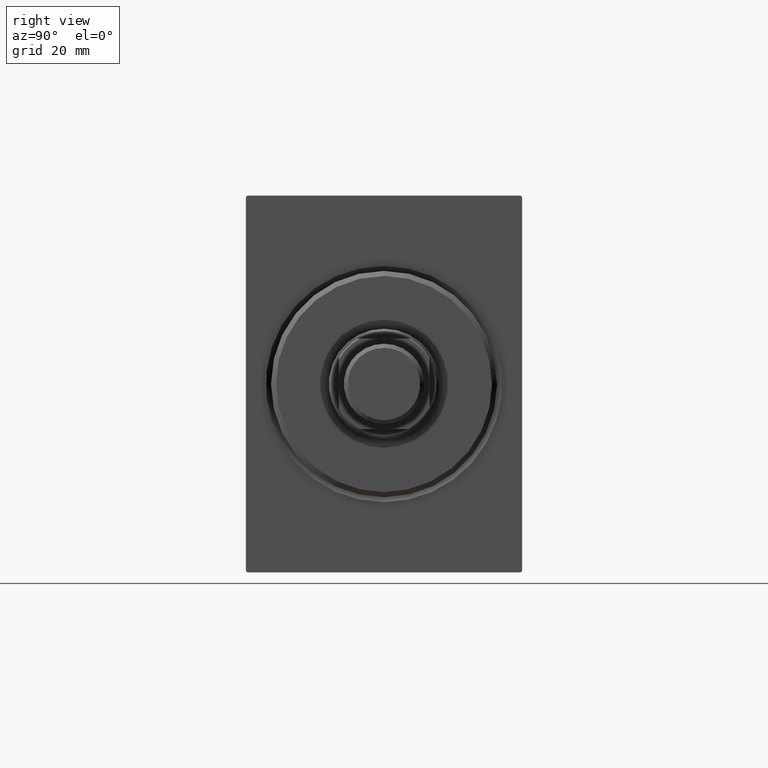
[diagram: clean part render]
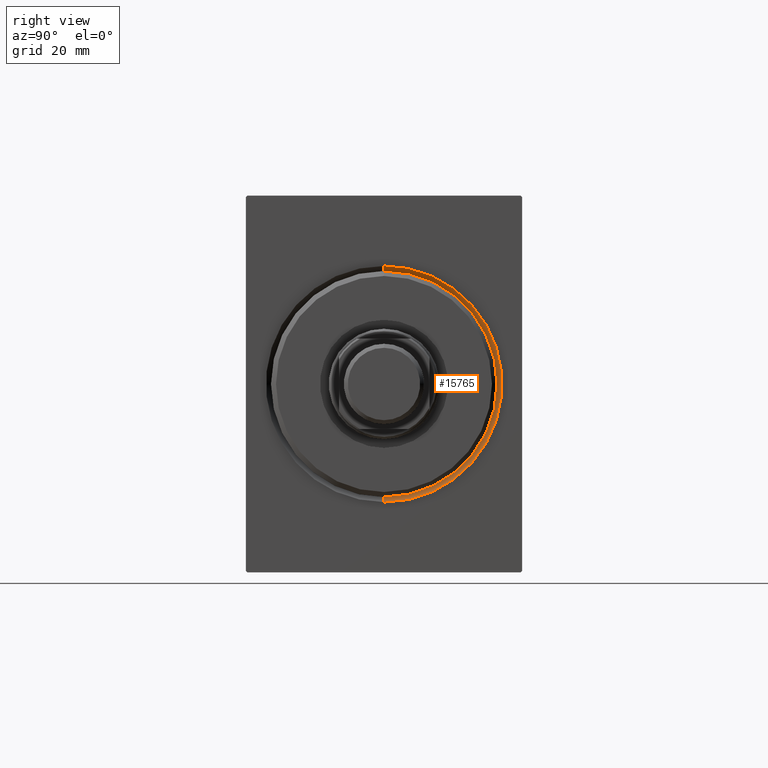
[diagram: same view with one face highlighted and labeled with its STEP entity id]
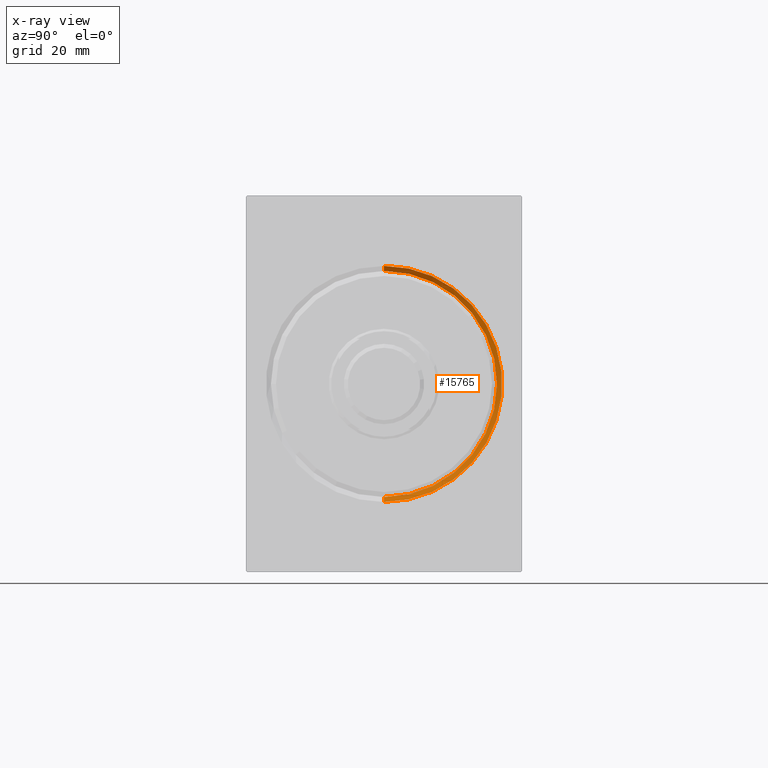
[diagram: x-ray of the same camera — body ghosted, the highlighted face saturated]
A machine part, right view. The second image highlights one B-rep face of the part: STEP entity #15765.
The next image is the same camera in x-ray: the body ghosted, the highlighted face saturated — about 0% of this face is hidden behind the body in this view.
In plain terms, the highlighted conical surface has half-angle 45 deg.
Its self-contained STEP definition (entity closure, byte-faithful):
#376 = ORIENTED_EDGE ( 'NONE', *, *, #36461, .F. ) ;
#1024 = DIRECTION ( 'NONE',  ( -1.000000000000000000, 0.000000000000000000, 0.000000000000000000 ) ) ;
#1341 = AXIS2_PLACEMENT_3D ( 'NONE', #18536, #41539, #5087 ) ;
#2099 = CARTESIAN_POINT ( 'NONE',  ( 0.000000000000000000, 2.877919977996280715E-15, -23.50000000000000355 ) ) ;
#3783 = CARTESIAN_POINT ( 'NONE',  ( 0.000000000000000000, 0.000000000000000000, 0.000000000000000000 ) ) ;
#4034 = AXIS2_PLACEMENT_3D ( 'NONE', #3783, #33740, #20085 ) ;
#5087 = DIRECTION ( 'NONE',  ( 0.000000000000000000, 0.000000000000000000, -1.000000000000000000 ) ) ;
#6910 = CIRCLE ( 'NONE', #1341, 22.50000000000000355 ) ;
#7523 = CARTESIAN_POINT ( 'NONE',  ( 1.000000000000000888, 2.755455298081545172E-15, -22.50000000000000355 ) ) ;
#7930 = ORIENTED_EDGE ( 'NONE', *, *, #31118, .T. ) ;
#8228 = CONICAL_SURFACE ( 'NONE', #17930, 22.50000000000000355, 0.7853981633974482790 ) ;
#11092 = LINE ( 'NONE', #41648, #25299 ) ;
#11760 = CARTESIAN_POINT ( 'NONE',  ( 0.000000000000000000, 0.000000000000000000, 23.50000000000000355 ) ) ;
#12370 = CIRCLE ( 'NONE', #4034, 23.50000000000000355 ) ;
#14670 = EDGE_LOOP ( 'NONE', ( #376, #7930, #23446, #17707 ) ) ;
#15765 = ADVANCED_FACE ( 'NONE', ( #40739 ), #8228, .F. ) ;
#17707 = ORIENTED_EDGE ( 'NONE', *, *, #23283, .F. ) ;
#17930 = AXIS2_PLACEMENT_3D ( 'NONE', #20796, #1024, #37079 ) ;
#18533 = CARTESIAN_POINT ( 'NONE',  ( 1.000000000000000888, 2.755455298081545172E-15, -22.50000000000000355 ) ) ;
#18536 = CARTESIAN_POINT ( 'NONE',  ( 1.000000000000000888, 0.000000000000000000, 0.000000000000000000 ) ) ;
#19787 = VERTEX_POINT ( 'NONE', #2099 ) ;
#20043 = VERTEX_POINT ( 'NONE', #11760 ) ;
#20085 = DIRECTION ( 'NONE',  ( 0.000000000000000000, 0.000000000000000000, -1.000000000000000000 ) ) ;
#20796 = CARTESIAN_POINT ( 'NONE',  ( 1.000000000000000888, 0.000000000000000000, 0.000000000000000000 ) ) ;
#23283 = EDGE_CURVE ( 'NONE', #41601, #20043, #11092, .T. ) ;
#23446 = ORIENTED_EDGE ( 'NONE', *, *, #37859, .F. ) ;
#24964 = DIRECTION ( 'NONE',  ( -0.7071067811865474617, 0.000000000000000000, 0.7071067811865474617 ) ) ;
#25299 = VECTOR ( 'NONE', #24964, 1000.000000000000114 ) ;
#30543 = LINE ( 'NONE', #7523, #35180 ) ;
#31118 = EDGE_CURVE ( 'NONE', #33298, #19787, #30543, .T. ) ;
#33073 = CARTESIAN_POINT ( 'NONE',  ( 1.000000000000000888, 0.000000000000000000, 22.50000000000000355 ) ) ;
#33298 = VERTEX_POINT ( 'NONE', #18533 ) ;
#33740 = DIRECTION ( 'NONE',  ( 1.000000000000000000, 0.000000000000000000, 0.000000000000000000 ) ) ;
#35180 = VECTOR ( 'NONE', #40302, 1000.000000000000114 ) ;
#36461 = EDGE_CURVE ( 'NONE', #33298, #41601, #6910, .T. ) ;
#37079 = DIRECTION ( 'NONE',  ( 0.000000000000000000, 0.000000000000000000, 1.000000000000000000 ) ) ;
#37859 = EDGE_CURVE ( 'NONE', #20043, #19787, #12370, .T. ) ;
#40302 = DIRECTION ( 'NONE',  ( -0.7071067811865474617, 8.659560562354932858E-17, -0.7071067811865474617 ) ) ;
#40739 = FACE_OUTER_BOUND ( 'NONE', #14670, .T. ) ;
#41539 = DIRECTION ( 'NONE',  ( -1.000000000000000000, 0.000000000000000000, 0.000000000000000000 ) ) ;
#41601 = VERTEX_POINT ( 'NONE', #33073 ) ;
#41648 = CARTESIAN_POINT ( 'NONE',  ( 1.000000000000000888, 0.000000000000000000, 22.50000000000000355 ) ) ;